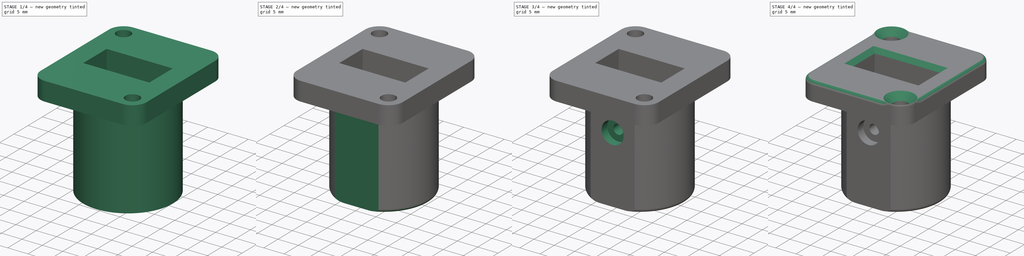
[diagram: build sequence overview — one tinted view per stage of 4, left to right]
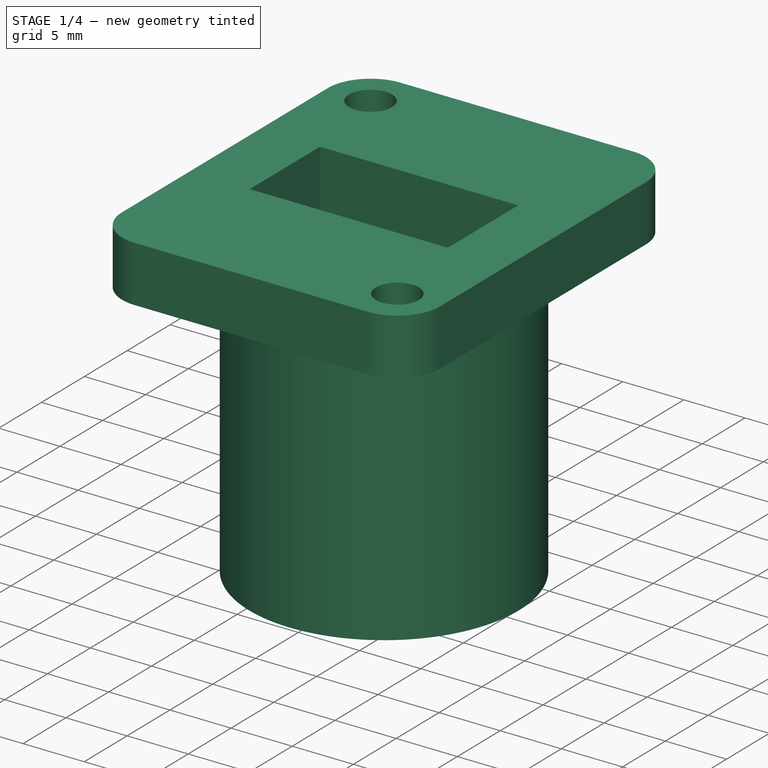
[diagram: stage 1 of 4 — iso view after this stage's code; geometry added in this stage tinted green]
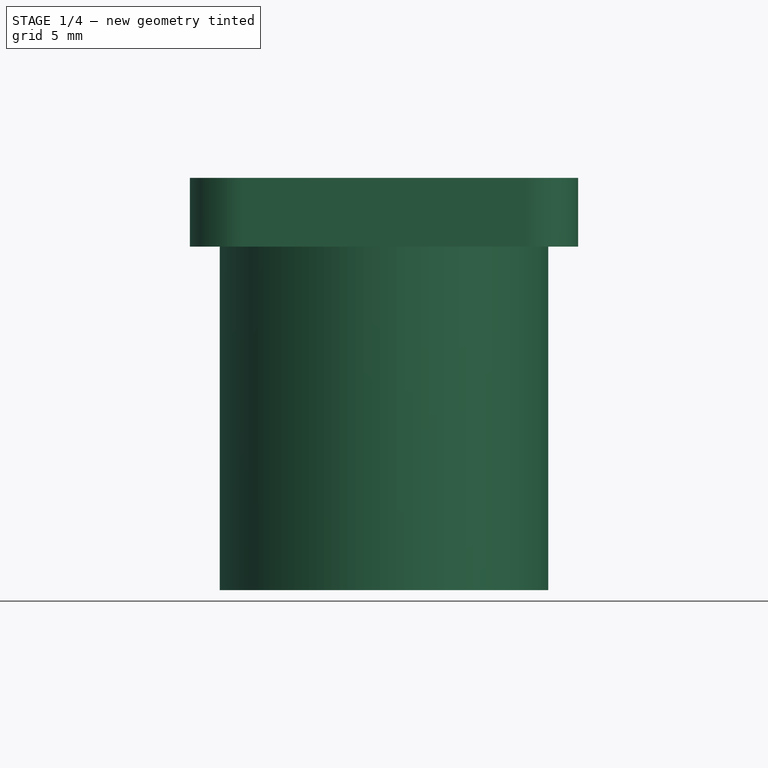
[diagram: stage 1 of 4 — front view after this stage's code; geometry added in this stage tinted green]
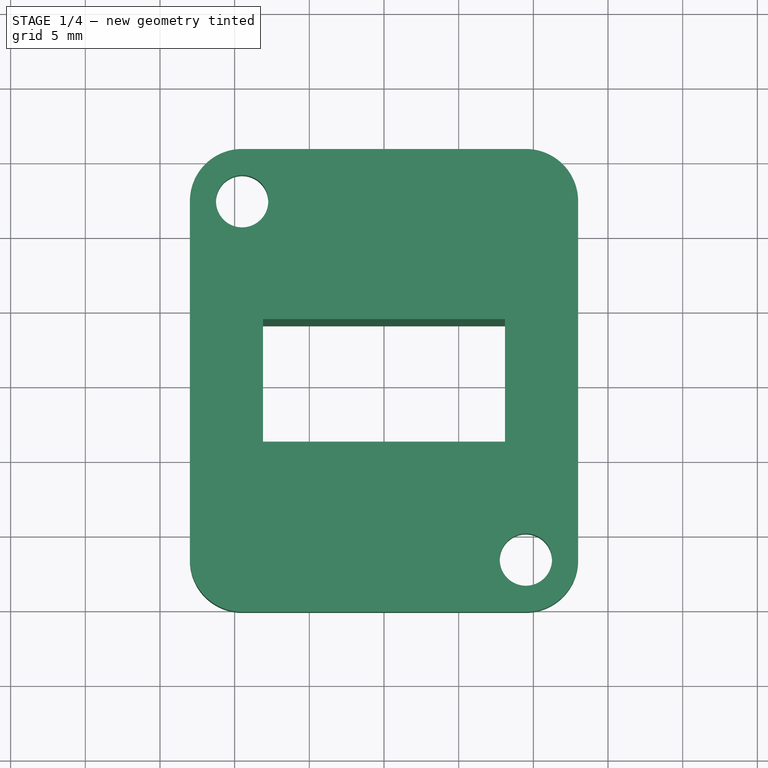
[diagram: stage 1 of 4 — top view after this stage's code; geometry added in this stage tinted green]
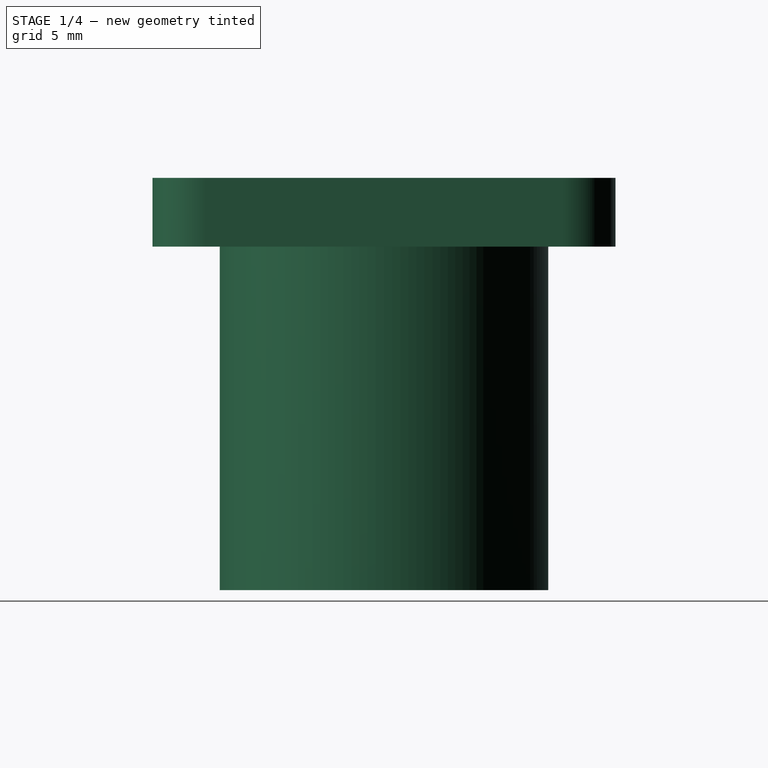
[diagram: stage 1 of 4 — right view after this stage's code; geometry added in this stage tinted green]
FCSTD DOCUMENT  (FreeCAD 1.0R39109 (Git))
Label: Powerpole_neutrik
License: CERN Open Hardware Licence strongly-reciprocal
LicenseURL: https://cern-ohl.web.cern.ch/
objects: Sketcher::SketchObject×7, PartDesign::Pocket×5, PartDesign::Pad×2, PartDesign::Fillet×2, PartDesign::Chamfer×2, PartDesign::Body×1
note: 48 computed .brp shape members not serialized (recipe doc carries the construction recipe); baked Part::Feature solids carry a one-line shape summary decoded from their .brp

FEATURE [Sketcher::SketchObject] Sketch
  ArcFitTolerance = 1e-06
  AttachmentSupport = -> [XY_Plane]
  FullyConstrained = true
  MakeInternals = false
  MapMode = 5
  sketch-geometry (14):
    g0: LineSegment StartX=-13 StartY=12 StartZ=0 EndX=-13 EndY=-12 EndZ=0
    g1: LineSegment StartX=-9.5 StartY=-15.5 StartZ=0 EndX=9.5 EndY=-15.5 EndZ=0
    g2: LineSegment StartX=13 StartY=-12 StartZ=0 EndX=13 EndY=12 EndZ=0
    g3: LineSegment StartX=9.5 StartY=15.5 StartZ=0 EndX=-9.5 EndY=15.5 EndZ=0
    g4: Circle CenterX=-9.5 CenterY=12 CenterZ=0 NormalX=0 NormalY=0 NormalZ=1 AngleXU=0 Radius=1.75
    g5: Circle CenterX=9.5 CenterY=-12 CenterZ=0 NormalX=0 NormalY=0 NormalZ=1 AngleXU=0 Radius=1.75
    g6: ArcOfCircle CenterX=-9.5 CenterY=12 CenterZ=0 NormalX=0 NormalY=0 NormalZ=1 AngleXU=0 Radius=3.5 StartAngle=1.5708 EndAngle=3.14159
    g7: GeomPoint [constr] X=-13 Y=15.5 Z=0
    g8: ArcOfCircle CenterX=9.5 CenterY=12 CenterZ=0 NormalX=0 NormalY=0 NormalZ=1 AngleXU=0 Radius=3.5 StartAngle=0 EndAngle=1.5708
    g9: GeomPoint [constr] X=13 Y=15.5 Z=0
    g10: ArcOfCircle CenterX=9.5 CenterY=-12 CenterZ=0 NormalX=0 NormalY=0 NormalZ=1 AngleXU=0 Radius=3.5 StartAngle=4.71239 EndAngle=6.28319
    g11: GeomPoint [constr] X=13 Y=-15.5 Z=0
    g12: ArcOfCircle CenterX=-9.5 CenterY=-12 CenterZ=0 NormalX=0 NormalY=0 NormalZ=1 AngleXU=0 Radius=3.5 StartAngle=3.14159 EndAngle=4.71239
    g13: GeomPoint [constr] X=-13 Y=-15.5 Z=0
  constraints (32):
    c: Vertical(g0)
    c: Vertical(g2)
    c: Horizontal(g1)
    c: Horizontal(g3)
    c: DistanceX(g7,g9) = 26
    c: DistanceY(g13,g7) = 31
    c: Symmetric(g7,g11,g-1)
    c: Diameter(g5) = 3.5
    c: Equal(g4,g5)
    c: DistanceX(g4,g5) = 19
    c: DistanceY(g5,g4) = 24
    c: Symmetric(g4,g5,g-1)
    c: PointOnObject(g7,g0)
    c: PointOnObject(g7,g3)
    c: Tangent(g0,g6) = -1.5708
    c: Tangent(g3,g6) = -1.5708
    c: PointOnObject(g9,g3)
    c: PointOnObject(g9,g2)
    c: Tangent(g3,g8) = -1.5708
    c: Tangent(g2,g8) = -1.5708
    c: PointOnObject(g11,g2)
    c: PointOnObject(g11,g1)
    c: Tangent(g2,g10) = -1.5708
    c: Tangent(g1,g10) = -1.5708
    c: PointOnObject(g13,g0)
    c: PointOnObject(g13,g1)
    c: Tangent(g0,g12) = -1.5708
    c: Tangent(g1,g12) = -1.5708
    c: Radius(g8) = 3.5
    c: Equal(g12,g6)
    c: Equal(g6,g10)
    c: Equal(g10,g8)
FEATURE [PartDesign::Pad] Pad
  Direction = (0,0,1)
  Length = 4.6
  Length2 = 10
  Profile = -> Sketch
  ReferenceAxis = -> Sketch [N_Axis]
  Refine = true
  Suppressed = false
  Type = 0
FEATURE [Sketcher::SketchObject] Sketch001
  ArcFitTolerance = 1e-06
  FullyConstrained = true
  MakeInternals = false
  MapMode = 5
  Placement = pos=(0,0,0) rot=(1,0,0;3.14159rad)
  sketch-geometry (5):
    g0: Circle CenterX=0 CenterY=0 CenterZ=0 NormalX=0 NormalY=0 NormalZ=1 AngleXU=0 Radius=11
    g1: LineSegment StartX=-8.1 StartY=-4.1 StartZ=0 EndX=8.1 EndY=-4.1 EndZ=0
    g2: LineSegment StartX=8.1 StartY=-4.1 StartZ=0 EndX=8.1 EndY=4.1 EndZ=0
    g3: LineSegment StartX=8.1 StartY=4.1 StartZ=0 EndX=-8.1 EndY=4.1 EndZ=0
    g4: LineSegment StartX=-8.1 StartY=4.1 StartZ=0 EndX=-8.1 EndY=-4.1 EndZ=0
  constraints (13):
    c: Coincident(g0,g-1)
    c: Diameter(g0) = 22
    c: Coincident(g1,g2)
    c: Coincident(g2,g3)
    c: Vertical(g2)
    c: Horizontal(g1)
    c: Horizontal(g3)
    c: DistanceX(g3,g3) = 16.2
    c: DistanceY(g1,g3) = 8.2
    c: Symmetric(g3,g1,g0)
    c: Equal(g1,g3)
    c: Coincident(g4,g3)
    c: Coincident(g4,g1)
FEATURE [PartDesign::Pad] Pad001
  BaseFeature = -> Pad
  Direction = (0,0,-1)
  Length = 23
  Length2 = 10
  Profile = -> Sketch001
  ReferenceAxis = -> Sketch001 [N_Axis]
  Refine = true
  Suppressed = false
  Type = 0
FEATURE [Sketcher::SketchObject] Sketch002
  ArcFitTolerance = 1e-06
  AttachmentSupport = -> [Pad001]
  ExternalGeometry = -> [Pad001]
  FullyConstrained = true
  MakeInternals = false
  MapMode = 5
  Placement = pos=(0,0,0) rot=(1,0,0;3.14159rad)
  sketch-geometry (4):
    g0: LineSegment StartX=8.1 StartY=-4.1 StartZ=0 EndX=8.1 EndY=4.1 EndZ=0
    g1: LineSegment StartX=8.1 StartY=4.1 StartZ=0 EndX=-8.1 EndY=4.1 EndZ=0
    g2: LineSegment StartX=-8.1 StartY=4.1 StartZ=0 EndX=-8.1 EndY=-4.1 EndZ=0
    g3: LineSegment StartX=-8.1 StartY=-4.1 StartZ=0 EndX=8.1 EndY=-4.1 EndZ=0
  constraints (10):
    c: Coincident(g0,g1)
    c: Coincident(g1,g2)
    c: Coincident(g2,g3)
    c: Coincident(g3,g0)
    c: Vertical(g0)
    c: Vertical(g2)
    c: Horizontal(g1)
    c: Horizontal(g3)
    c: Coincident(g0,g-4)
    c: Coincident(g1,g-3)
FEATURE [PartDesign::Pocket] Pocket
  BaseFeature = -> Pad001
  Direction = (0,0,1)
  Length = 5
  Length2 = 5
  Profile = -> Sketch002
  ReferenceAxis = -> Sketch002 [N_Axis]
  Refine = true
  Suppressed = false
  Type = 1
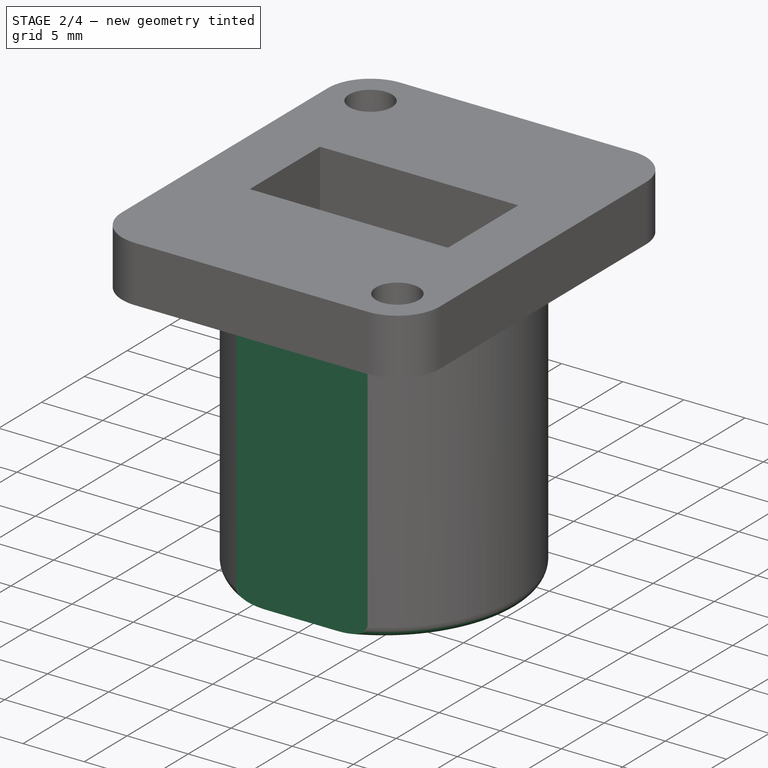
[diagram: stage 2 of 4 — iso view after this stage's code; geometry added in this stage tinted green]
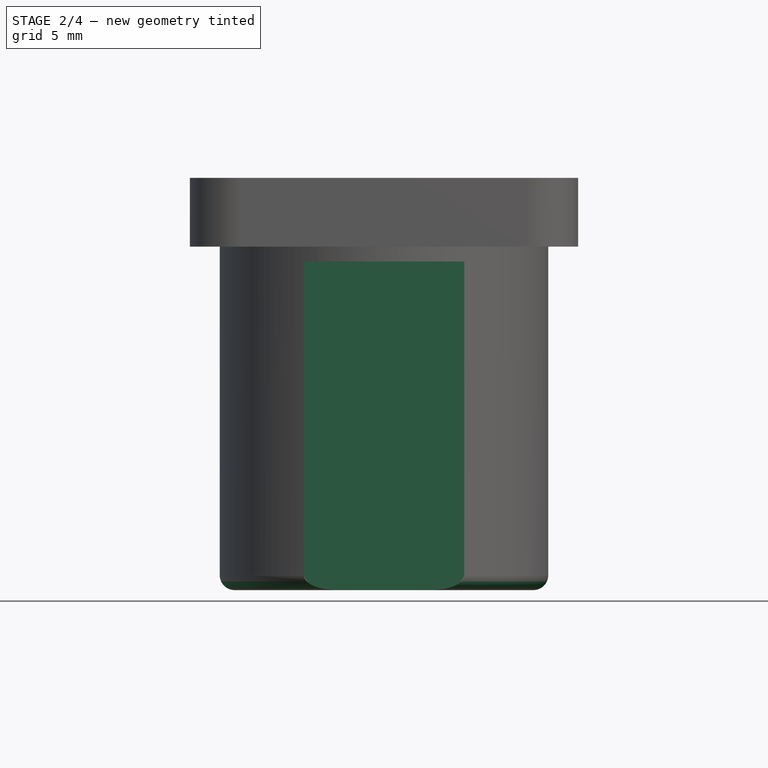
[diagram: stage 2 of 4 — front view after this stage's code; geometry added in this stage tinted green]
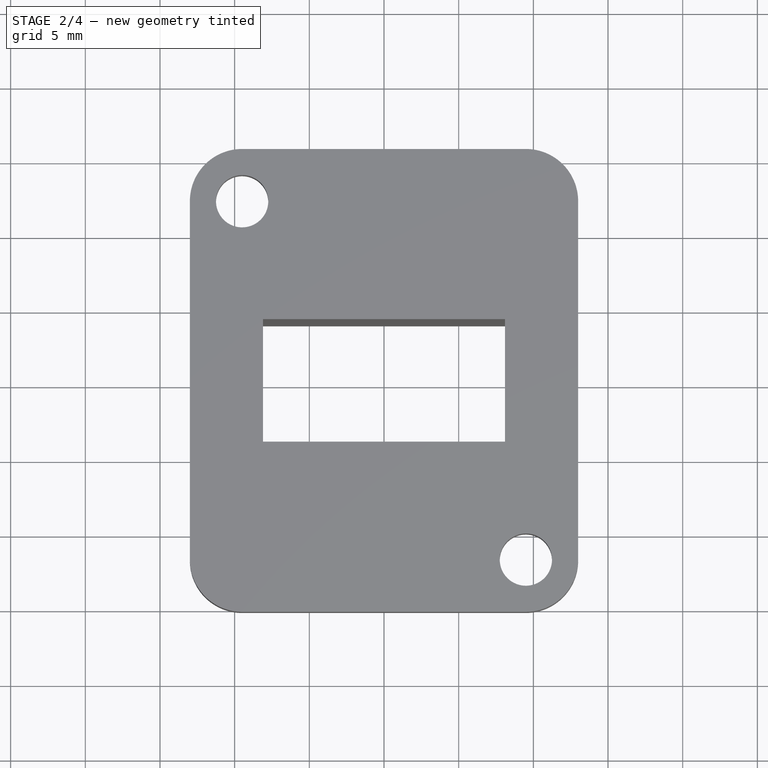
[diagram: stage 2 of 4 — top view after this stage's code; geometry added in this stage tinted green]
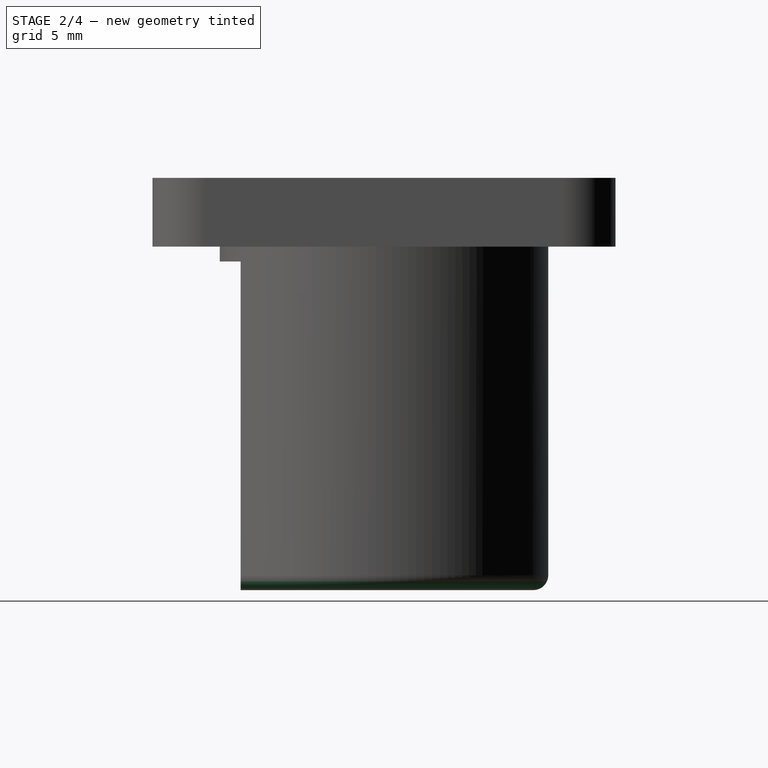
[diagram: stage 2 of 4 — right view after this stage's code; geometry added in this stage tinted green]
FEATURE [Sketcher::SketchObject] Sketch003
  ArcFitTolerance = 1e-06
  FullyConstrained = true
  MakeInternals = false
  MapMode = 5
  Placement = pos=(0,0,-23) rot=(1,0,0;3.14159rad)
  sketch-geometry (14):
    g0: LineSegment [constr] StartX=-8.1 StartY=4.1 StartZ=0 EndX=-8.1 EndY=-4.1 EndZ=0
    g1: LineSegment [constr] StartX=-8.1 StartY=4.1 StartZ=0 EndX=8.1 EndY=4.1 EndZ=0
    g2: LineSegment StartX=-8.1 StartY=1.95 StartZ=0 EndX=-8.8 EndY=1.95 EndZ=0
    g3: LineSegment StartX=-8.8 StartY=1.95 StartZ=0 EndX=-8.8 EndY=-1.95 EndZ=0
    g4: LineSegment StartX=-8.8 StartY=-1.95 StartZ=0 EndX=-8.1 EndY=-1.95 EndZ=0
    g5: LineSegment StartX=-8.1 StartY=-1.95 StartZ=0 EndX=-8.1 EndY=1.95 EndZ=0
    g6: LineSegment StartX=-5.75 StartY=4.1 StartZ=0 EndX=-1.85 EndY=4.1 EndZ=0
    g7: LineSegment StartX=-1.85 StartY=4.1 StartZ=0 EndX=-1.85 EndY=4.8 EndZ=0
    g8: LineSegment StartX=-1.85 StartY=4.8 StartZ=0 EndX=-5.75 EndY=4.8 EndZ=0
    g9: LineSegment StartX=-5.75 StartY=4.8 StartZ=0 EndX=-5.75 EndY=4.1 EndZ=0
    g10: LineSegment StartX=1.85 StartY=4.1 StartZ=0 EndX=5.75 EndY=4.1 EndZ=0
    g11: LineSegment StartX=5.75 StartY=4.1 StartZ=0 EndX=5.75 EndY=4.8 EndZ=0
    g12: LineSegment StartX=5.75 StartY=4.8 StartZ=0 EndX=1.85 EndY=4.8 EndZ=0
    g13: LineSegment StartX=1.85 StartY=4.8 StartZ=0 EndX=1.85 EndY=4.1 EndZ=0
  constraints (38):
    c: Coincident(g0,g-3)
    c: Coincident(g0,g-4)
    c: Coincident(g1,g0)
    c: Coincident(g1,g-3)
    c: Coincident(g2,g3)
    c: Coincident(g3,g4)
    c: Coincident(g4,g5)
    c: Coincident(g5,g2)
    c: Horizontal(g2)
    c: Horizontal(g4)
    c: Vertical(g3)
    c: PointOnObject(g2,g0)
    c: Coincident(g6,g7)
    c: Coincident(g7,g8)
    c: Coincident(g8,g9)
    c: Coincident(g9,g6)
    c: Horizontal(g6)
    c: Horizontal(g8)
    c: Vertical(g7)
    c: Vertical(g9)
    c: PointOnObject(g6,g1)
    c: Coincident(g10,g11)
    c: Coincident(g11,g12)
    c: Coincident(g12,g13)
    c: Coincident(g13,g10)
    c: Horizontal(g10)
    c: Horizontal(g12)
    c: Vertical(g11)
    c: Vertical(g13)
    c: DistanceX(g2,g2) = 0.7
    c: DistanceY(g3,g3) = 3.9
    c: Equal(g8,g12)
    c: Equal(g12,g3)
    c: Equal(g13,g9)
    c: Equal(g9,g2)
    c: Symmetric(g6,g10,g-2)
    c: Symmetric(g2,g4,g-1)
    c: DistanceX(g8,g11) = 11.5
FEATURE [PartDesign::Pocket] Pocket001
  BaseFeature = -> Pocket
  Direction = (0,1e-16,1)
  Length = 15.5
  Length2 = 5
  Profile = -> Sketch003
  ReferenceAxis = -> Sketch003 [N_Axis]
  Refine = true
  Suppressed = false
  Type = 0
FEATURE [PartDesign::Fillet] Fillet001
  Base = -> Pocket001 [Edge36]
  BaseFeature = -> Pocket001
  Radius = 1
  Refine = true
  SupportTransform = false
  Suppressed = false
  UseAllEdges = false
FEATURE [Sketcher::SketchObject] Sketch004
  ArcFitTolerance = 1e-06
  AttachmentSupport = -> [Fillet001]
  ExternalGeometry = -> [Fillet001]
  FullyConstrained = true
  MakeInternals = false
  MapMode = 5
  Placement = pos=(0,0,-23) rot=(1,0,0;3.14159rad)
  sketch-geometry (4):
    g0: LineSegment StartX=-5.37029 StartY=9.6 StartZ=0 EndX=5.37029 EndY=9.6 EndZ=0
    g1: LineSegment StartX=5.37029 StartY=9.6 StartZ=0 EndX=5.37029 EndY=11 EndZ=0
    g2: LineSegment StartX=5.37029 StartY=11 StartZ=0 EndX=-5.37029 EndY=11 EndZ=0
    g3: LineSegment StartX=-5.37029 StartY=11 StartZ=0 EndX=-5.37029 EndY=9.6 EndZ=0
  constraints (11):
    c: Coincident(g0,g1)
    c: Coincident(g1,g2)
    c: Coincident(g2,g3)
    c: Coincident(g3,g0)
    c: Horizontal(g0)
    c: Vertical(g1)
    c: Vertical(g3)
    c: Symmetric(g2,g1,g-2)
    c: PointOnObject(g0,g-4)
    c: Tangent(g2,g-4)
    c: DistanceY(g-3,g0) = 5.5
FEATURE [PartDesign::Pocket] Pocket002
  BaseFeature = -> Fillet001
  Direction = (0,0,1)
  Length = 22
  Length2 = 5
  Profile = -> Sketch004
  ReferenceAxis = -> Sketch004 [N_Axis]
  Refine = true
  Suppressed = false
  Type = 0
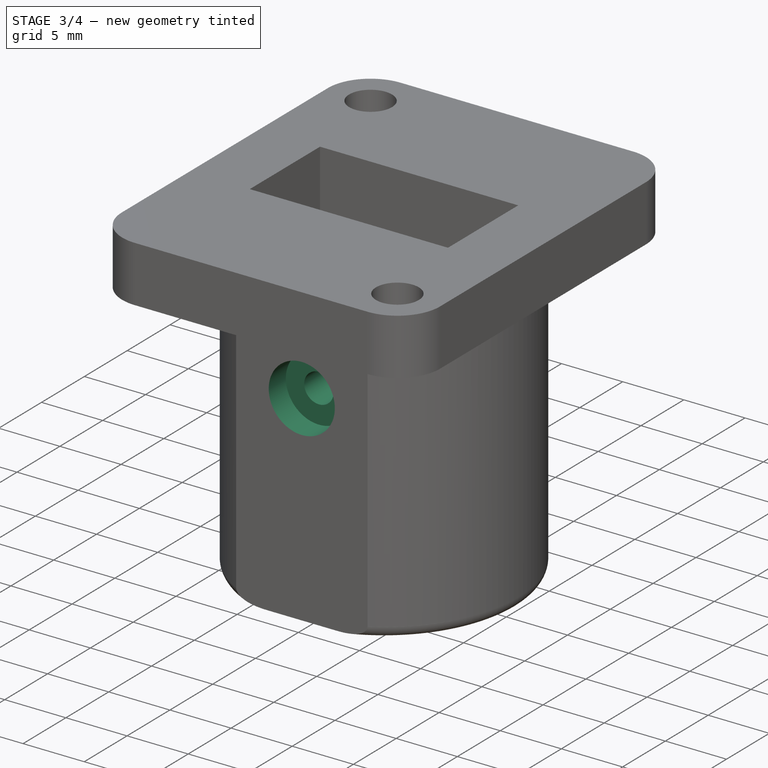
[diagram: stage 3 of 4 — iso view after this stage's code; geometry added in this stage tinted green]
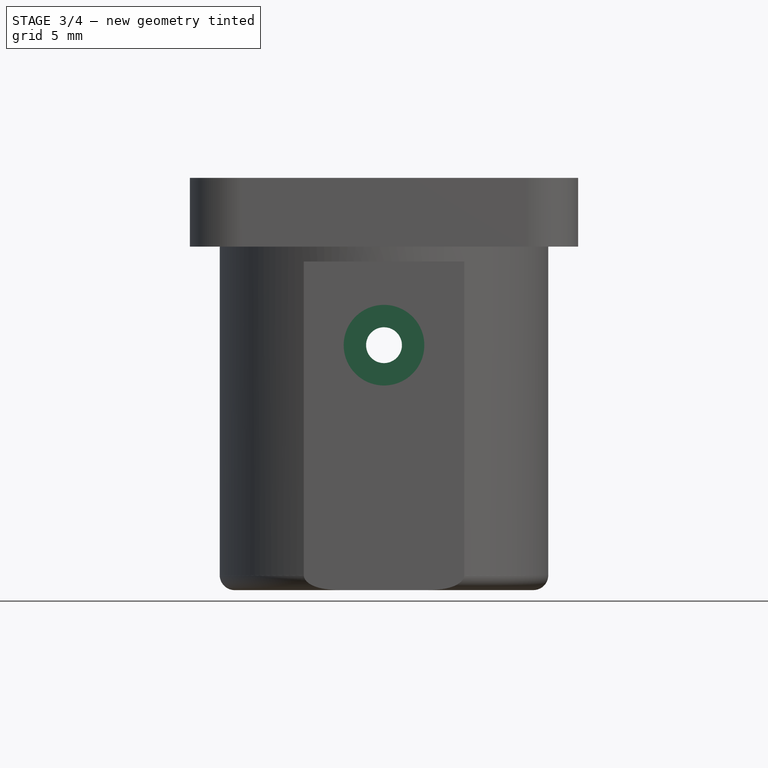
[diagram: stage 3 of 4 — front view after this stage's code; geometry added in this stage tinted green]
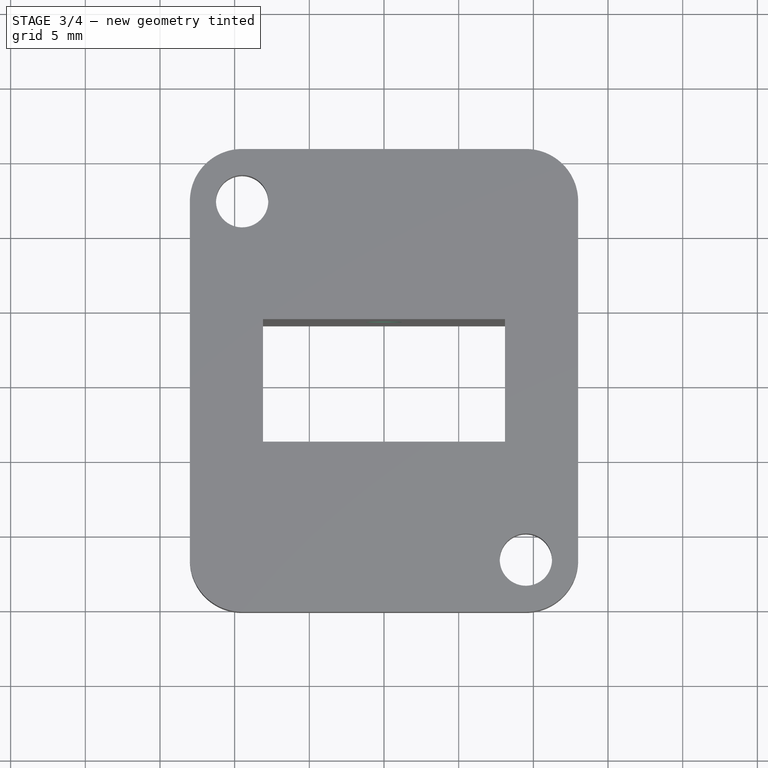
[diagram: stage 3 of 4 — top view after this stage's code; geometry added in this stage tinted green]
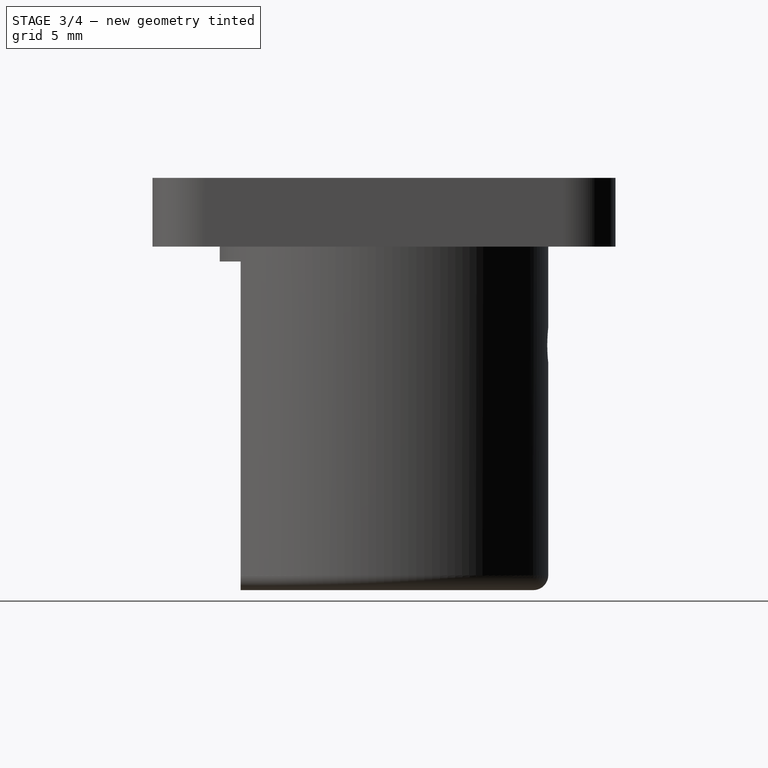
[diagram: stage 3 of 4 — right view after this stage's code; geometry added in this stage tinted green]
FEATURE [Sketcher::SketchObject] Sketch005
  ArcFitTolerance = 1e-06
  AttachmentSupport = -> [Pocket002]
  ExternalGeometry = -> [Pocket002]
  FullyConstrained = true
  MakeInternals = false
  MapMode = 5
  Placement = pos=(0,-9.6,0) rot=(1,0,0;1.5708rad)
  sketch-geometry (1):
    g0: Circle CenterX=0 CenterY=-6.6 CenterZ=0 NormalX=0 NormalY=0 NormalZ=1 AngleXU=0 Radius=1.2
  constraints (3):
    c: PointOnObject(g0,g-2)
    c: DistanceY(g0,g-3) = 6.6
    c: Diameter(g0) = 2.4
FEATURE [PartDesign::Pocket] Pocket003
  BaseFeature = -> Pocket002
  Direction = (0,1,-2e-16)
  Length = 5
  Length2 = 5
  Profile = -> Sketch005
  ReferenceAxis = -> Sketch005 [N_Axis]
  Refine = true
  Suppressed = false
  Type = 1
FEATURE [Sketcher::SketchObject] Sketch006
  ArcFitTolerance = 1e-06
  AttachmentSupport = -> [Pocket003]
  ExternalGeometry = -> [Pocket003]
  FullyConstrained = true
  MakeInternals = false
  MapMode = 5
  Placement = pos=(0,-9.6,0) rot=(1,0,0;1.5708rad)
  sketch-geometry (1):
    g0: Circle CenterX=0 CenterY=-6.6 CenterZ=0 NormalX=0 NormalY=0 NormalZ=1 AngleXU=0 Radius=2.7
  constraints (2):
    c: Coincident(g0,g-3)
    c: Diameter(g0) = 5.4
FEATURE [PartDesign::Pocket] Pocket004
  BaseFeature = -> Pocket003
  Direction = (0,1,-2e-16)
  Length = 2
  Length2 = 5
  Profile = -> Sketch006
  ReferenceAxis = -> Sketch006 [N_Axis]
  Refine = true
  Suppressed = false
  Type = 0
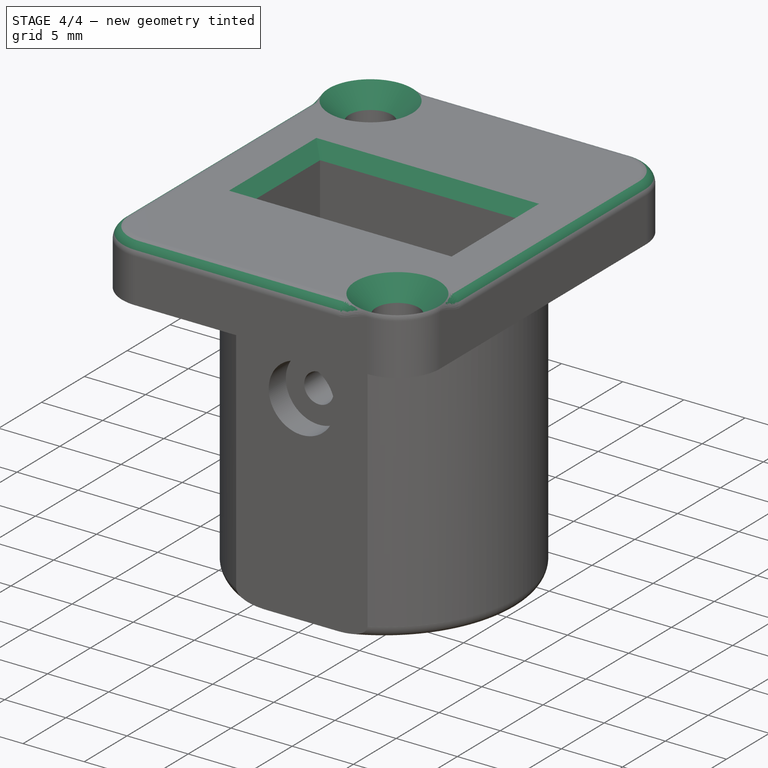
[diagram: stage 4 of 4 — iso view after this stage's code; geometry added in this stage tinted green]
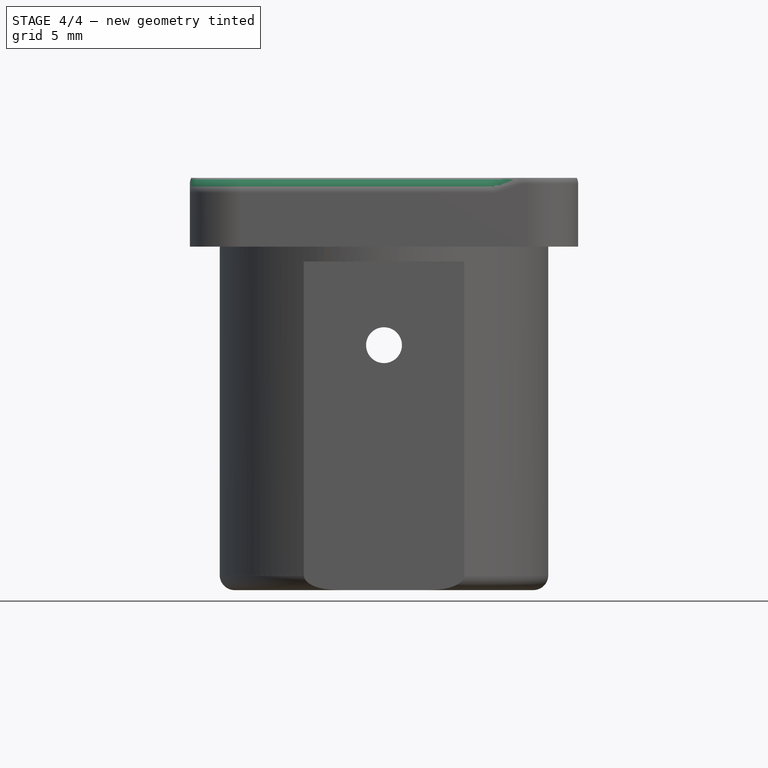
[diagram: stage 4 of 4 — front view after this stage's code; geometry added in this stage tinted green]
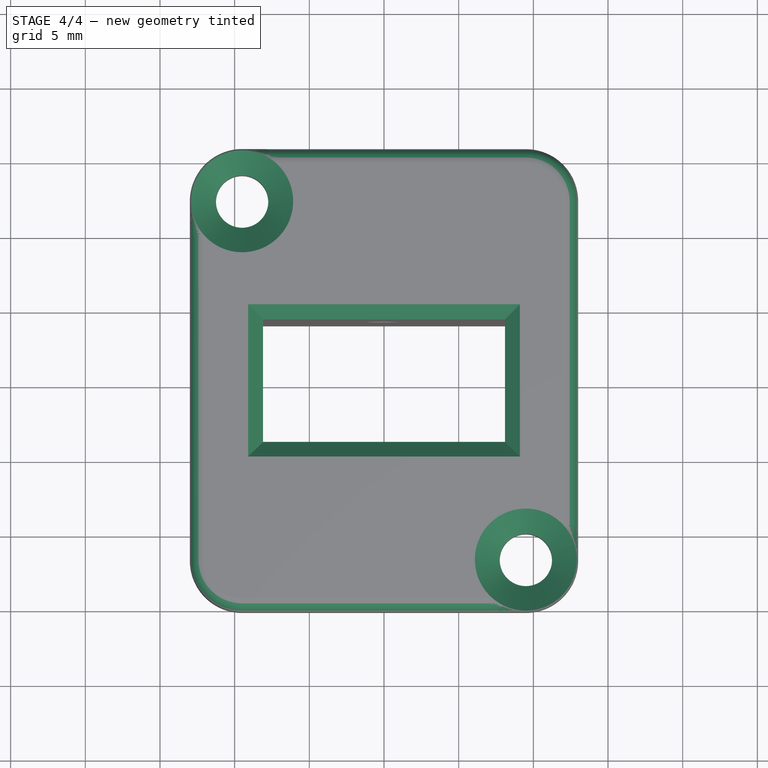
[diagram: stage 4 of 4 — top view after this stage's code; geometry added in this stage tinted green]
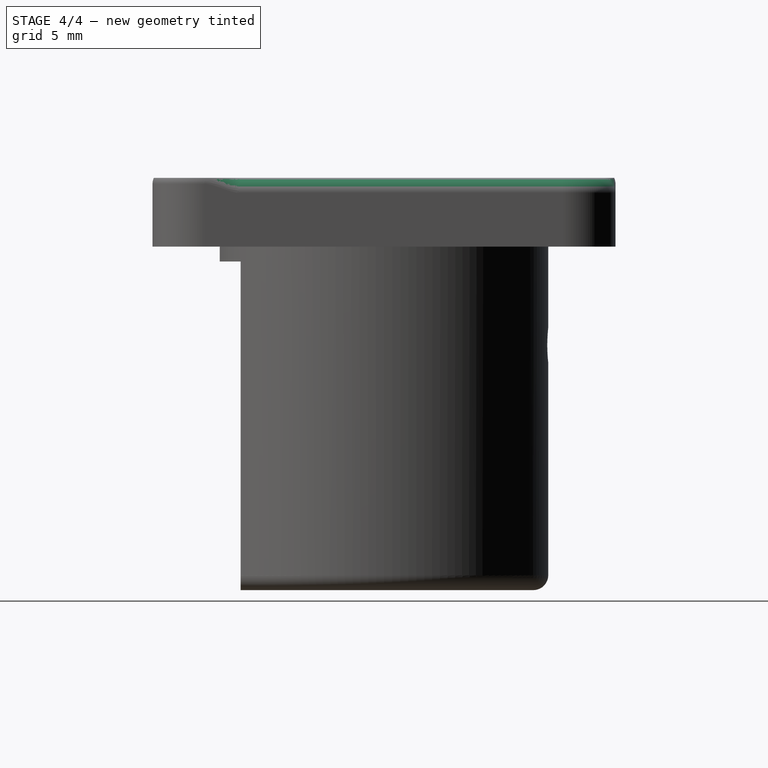
[diagram: stage 4 of 4 — right view after this stage's code; geometry added in this stage tinted green]
FEATURE [PartDesign::Chamfer] Chamfer
  Angle = 48
  Base = -> Pocket004 [Edge67,Edge65]
  BaseFeature = -> Pocket004
  ChamferType = 2
  FlipDirection = false
  Refine = true
  Size = 1.5
  Size2 = 1
  SupportTransform = false
  Suppressed = false
  UseAllEdges = false
FEATURE [PartDesign::Fillet] Fillet
  Base = -> Chamfer [Edge24,Edge21,Edge17,Edge19,Edge22,Edge20,Edge23,Edge18]
  BaseFeature = -> Chamfer
  Radius = 1
  Refine = true
  SupportTransform = false
  Suppressed = false
  UseAllEdges = false
FEATURE [PartDesign::Chamfer] Chamfer001
  Angle = 45
  Base = -> Fillet [Edge19,Edge18,Edge17,Edge16]
  BaseFeature = -> Fillet
  ChamferType = 0
  FlipDirection = false
  Refine = true
  Size = 1
  Size2 = 1
  SupportTransform = false
  Suppressed = false
  UseAllEdges = false
FEATURE [PartDesign::Body] Body  label="Corps"
  AllowCompound = false
  Group = -> [Sketch,Pad,Sketch001,Pad001,Sketch002,Pocket,Sketch003,Pocket001,Fillet001,Sketch004,Pocket002,Sketch005,Pocket003,Sketch006,Pocket004,Chamfer,Fillet,Chamfer001]
  Origin = -> Origin
  Tip = -> Chamfer001
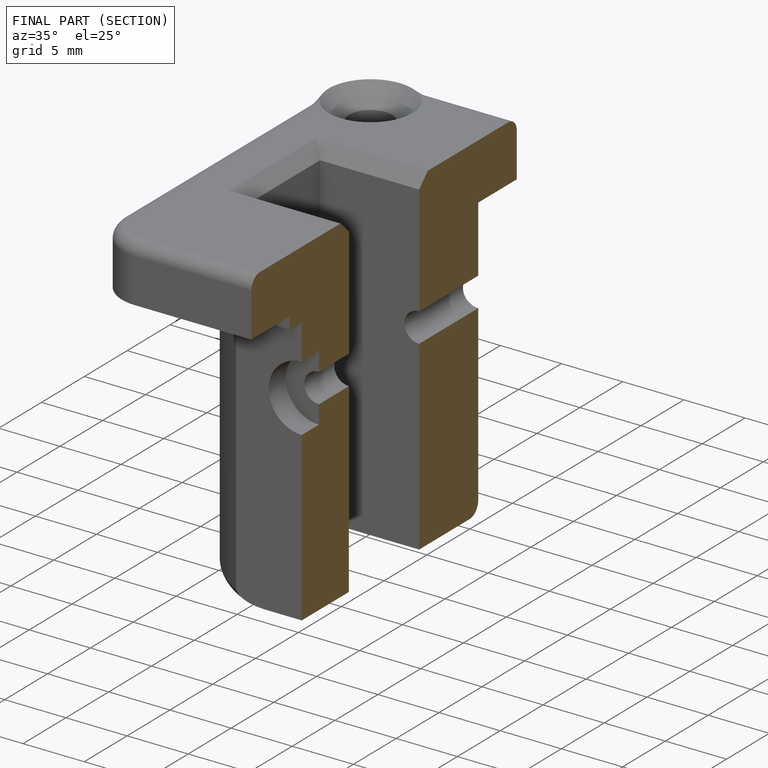
[diagram: finished part — half-section view (interior)]
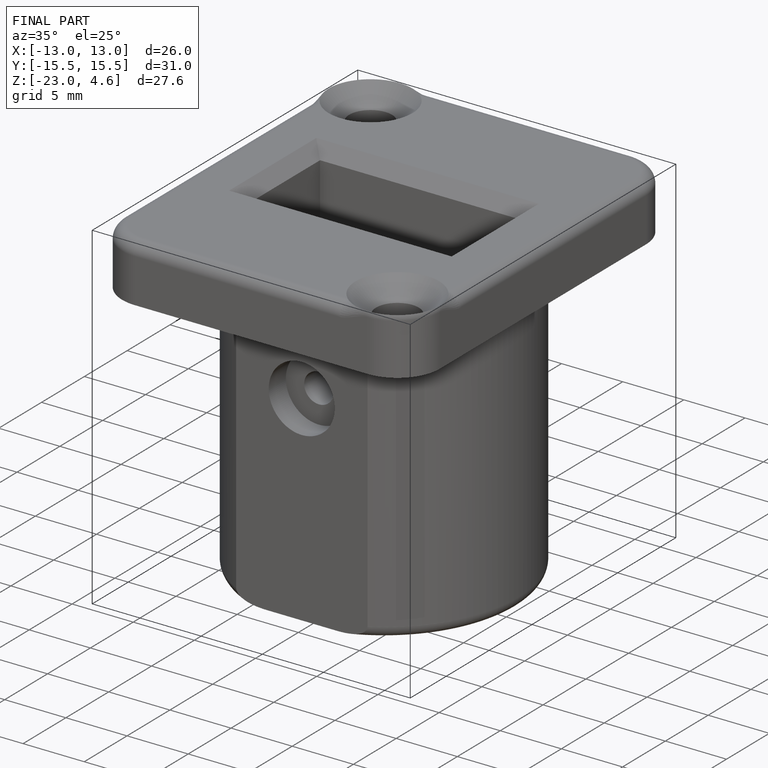
[diagram: finished part — iso view with bounding-box wireframe]
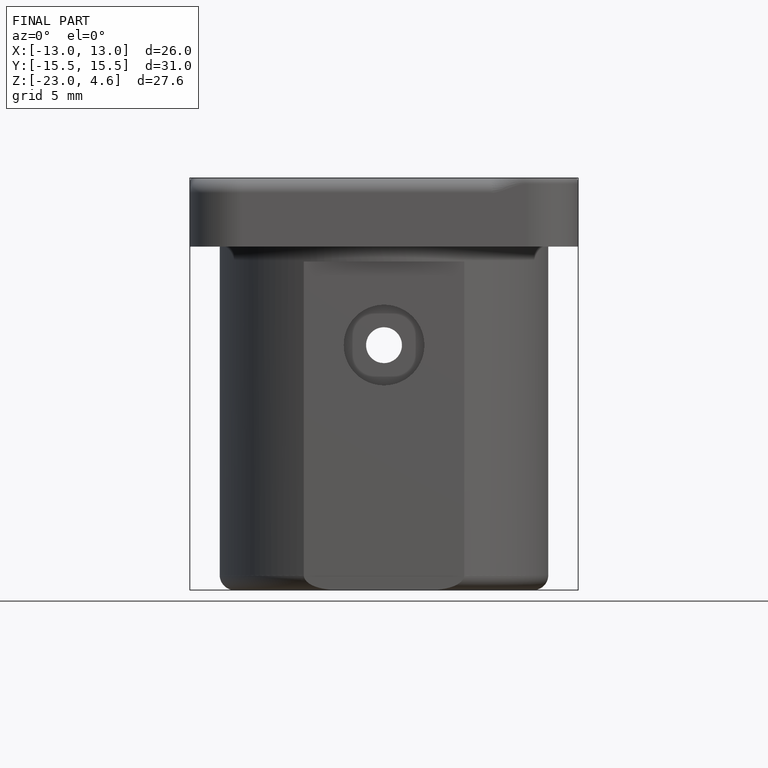
[diagram: finished part — front view with bounding-box wireframe]
